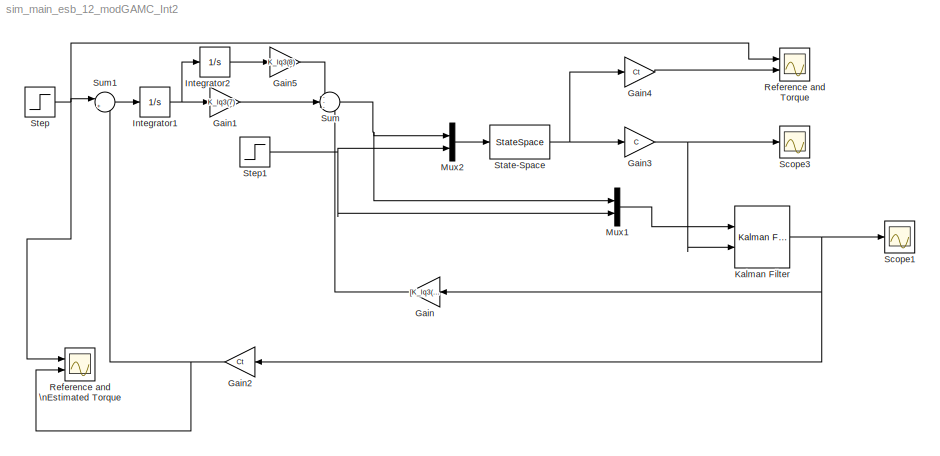
MODEL sim_main_esb_12_modGAMC_Int2
KIND model
BLOCK [Gain] Gain
  Gain = [K_lq3(1:6) 0]
  Multiplication = Matrix(K*u)
  OutDataTypeStr = Inherit: Inherit via internal rule
  ParamDataTypeStr = Inherit: Inherit via internal rule
  SID = 13
  SaturateOnIntegerOverflow = off
BLOCK [Gain] Gain1
  Gain = K_lq3(7)
  Multiplication = Matrix(K*u)
  OutDataTypeStr = Inherit: Inherit via internal rule
  ParamDataTypeStr = Inherit: Inherit via internal rule
  SID = 17
  SaturateOnIntegerOverflow = off
BLOCK [Gain] Gain2
  Gain = Ct
  Multiplication = Matrix(K*u)
  OutDataTypeStr = Inherit: Inherit via internal rule
  ParamDataTypeStr = Inherit: Inherit via internal rule
  SID = 19
  SaturateOnIntegerOverflow = off
BLOCK [Gain] Gain3
  Gain = C
  Multiplication = Matrix(K*u)
  OutDataTypeStr = Inherit: Inherit via internal rule
  ParamDataTypeStr = Inherit: Inherit via internal rule
  SID = 30
  SaturateOnIntegerOverflow = off
BLOCK [Gain] Gain4
  Gain = Ct
  Multiplication = Matrix(K*u)
  OutDataTypeStr = Inherit: Inherit via internal rule
  ParamDataTypeStr = Inherit: Inherit via internal rule
  SID = 32
  SaturateOnIntegerOverflow = off
BLOCK [Gain] Gain5
  Gain = K_lq3(8)
  Multiplication = Matrix(K*u)
  OutDataTypeStr = Inherit: Inherit via internal rule
  ParamDataTypeStr = Inherit: Inherit via internal rule
  SID = 46
  SaturateOnIntegerOverflow = off
BLOCK [Integrator] Integrator1
  Ports = [1, 1]
  SID = 16
BLOCK [Integrator] Integrator2
  Ports = [1, 1]
  SID = 45
BLOCK [Reference] Kalman Filter  REF=ctrlSharedLib/Kalman Filter
  A = A
  AddEnablePort = off
  AddInputPort = on
  B = B
  C = C
  D = D
  ExternalReset = None
  G = 1
  H = 0
  InitialEstimateSource = Dialog
  ModelSource = Individual A, B, C, D matrices
  ModelSourceVariable = ss(0.95,1,1,0,1)
  N = 0
  NumberOfInputs = 1
  NumberOfOutputs = 1
  NumberOfProcessNoiseInputs = 1
  NumberOfStates = 1
  OutputEstimatedY = off
  OutputP = off
  P0 = 10
  Ports = [2, 1]
  Q = 0.5
  R = 1
  SID = 6
  SourceBlock = ctrlSharedLib/Kalman Filter
  SourceProductBaseCode = CT
  SourceProductName = Control System Toolbox
  SourceType = ctrlKalmanFilter
  TimeDomain = Continuous-Time
  TimeInvariantG = on
  TimeInvariantH = on
  TimeInvariantN = on
  TimeInvariantQ = on
  TimeInvariantR = on
  Ts = -1
  UseCurrentEstimator = on
  UseGH = off
  UseK = off
  X0 = 0
BLOCK [Mux] Mux1
  DisplayOption = bar
  Inputs = 2
  Ports = [2, 1]
  SID = 40
BLOCK [Mux] Mux2
  DisplayOption = bar
  Inputs = 2
  Ports = [2, 1]
  SID = 41
BLOCK [Scope] Reference and  Torque
  Floating = off
  NumInputPorts = 2
  Ports = [2]
  SID = 33
  ScopeSpecificationString = Simulink.scopes.TimeScopeBlockCfg('CurrentConfiguration', extmgr.ConfigurationSet(extmgr.Configuration('Core','General UI',true),extmgr.Configuration('Core','Source UI',true),extmgr.Configuration('Sources','WiredSimulink',true,'DataLoggingVariableName','ScopeData3'),extmgr.Configuration('Visuals','Time Domain',true,'SerializedDisplays',{struct('MinYLimReal','-0.97787','MaxYLimReal','11.70172','YLa...<+1446ch>
BLOCK [Scope] Reference and \nEstimated Torque
  Floating = off
  NumInputPorts = 2
  Ports = [2]
  SID = 20
  ScopeSpecificationString = Simulink.scopes.TimeScopeBlockCfg('CurrentConfiguration', extmgr.ConfigurationSet(extmgr.Configuration('Core','General UI',true),extmgr.Configuration('Core','Source UI',true),extmgr.Configuration('Sources','WiredSimulink',true,'DataLoggingVariableName','ScopeData2'),extmgr.Configuration('Visuals','Time Domain',true,'SerializedDisplays',{struct('MinYLimReal','-2.34413','MaxYLimReal','12.42397','YLa...<+1404ch>
BLOCK [Scope] Scope1
  Floating = off
  NumInputPorts = 1
  Ports = [1]
  SID = 7
  ScopeSpecificationString = Simulink.scopes.TimeScopeBlockCfg('CurrentConfiguration', extmgr.ConfigurationSet(extmgr.Configuration('Core','General UI',true),extmgr.Configuration('Core','Source UI',true),extmgr.Configuration('Sources','WiredSimulink',true,'DataLoggingVariableName','ScopeData1'),extmgr.Configuration('Visuals','Time Domain',true,'SerializedDisplays',{struct('MinYLimReal','-17.91516','MaxYLimReal','17.05895','YL...<+1541ch>
BLOCK [Scope] Scope3
  Floating = off
  NumInputPorts = 1
  Ports = [1]
  SID = 31
  ScopeSpecificationString = Simulink.scopes.TimeScopeBlockCfg('CurrentConfiguration', extmgr.ConfigurationSet(extmgr.Configuration('Core','General UI',true),extmgr.Configuration('Core','Source UI',true),extmgr.Configuration('Sources','WiredSimulink',true),extmgr.Configuration('Visuals','Time Domain',true,'SerializedDisplays',{struct('MinYLimReal','-44.99896','MaxYLimReal','297.14196','YLabelReal','','MinYLimMag','0.00000','M...<+1391ch>
BLOCK [StateSpace] State-Space
  A = sys_sys.A
  B = sys_sys.B
  C = sys_sys.C
  D = sys_sys.D
  InitialCondition = 0
  Ports = [1, 1]
  SID = 1
BLOCK [Step] Step
  After = 10
  SID = 22
  SampleTime = 0
  Time = .1
BLOCK [Step] Step1
  After = .1
  SID = 27
  SampleTime = 0
  Time = .1
BLOCK [Sum] Sum
  IconShape = round
  InputSameDT = off
  Inputs = ---
  OutDataTypeStr = Inherit: Inherit via internal rule
  Ports = [3, 1]
  SID = 12
  SaturateOnIntegerOverflow = off
BLOCK [Sum] Sum1
  IconShape = round
  InputSameDT = off
  Inputs = |+-
  OutDataTypeStr = Inherit: Inherit via internal rule
  Ports = [2, 1]
  SID = 21
  SaturateOnIntegerOverflow = off
LINE Gain1:1 -> Sum:2
NET Gain2:1 -> Reference and \nEstimated Torque:2, Sum1:2
NET Gain3:1 -> Kalman Filter:2, Scope3:1
LINE Gain4:1 -> Reference and  Torque:2
LINE Gain5:1 -> Sum:1
LINE Gain:1 -> Sum:3
NET Integrator1:1 -> Gain1:1, Integrator2:1
LINE Integrator2:1 -> Gain5:1
NET Kalman Filter:1 -> Gain2:1, Gain:1, Scope1:1
LINE Mux1:1 -> Kalman Filter:1
LINE Mux2:1 -> State-Space:1
NET State-Space:1 -> Gain3:1, Gain4:1
NET Step1:1 -> Mux1:2, Mux2:2
NET Step:1 -> Reference and  Torque:1, Reference and \nEstimated Torque:1, Sum1:1
LINE Sum1:1 -> Integrator1:1
NET Sum:1 -> Mux1:1, Mux2:1
note: NET lines group one-source signal fan-out (src -> all destinations, sorted); 1:1 wires keep LINE
